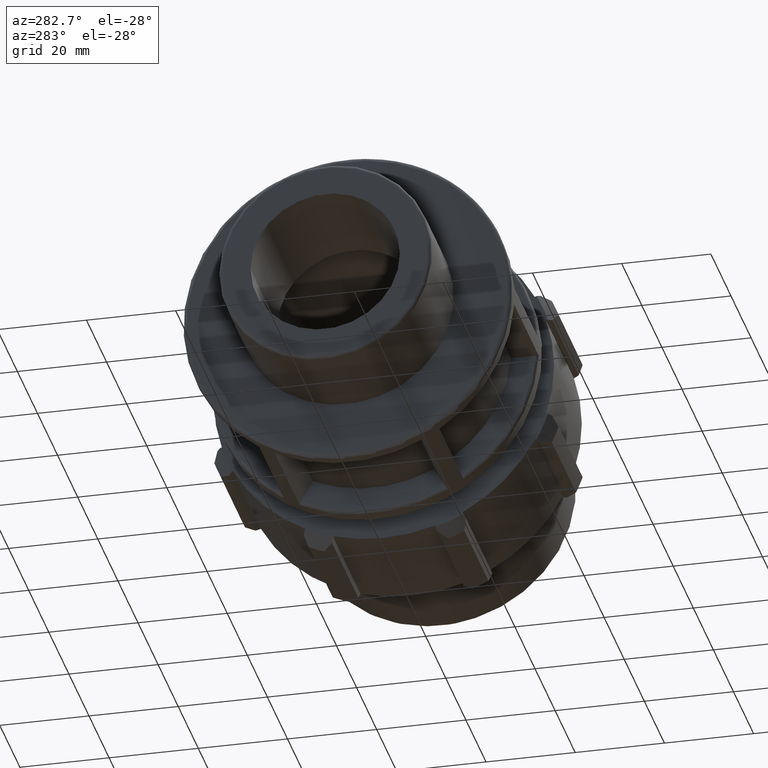
[diagram: clean part render]
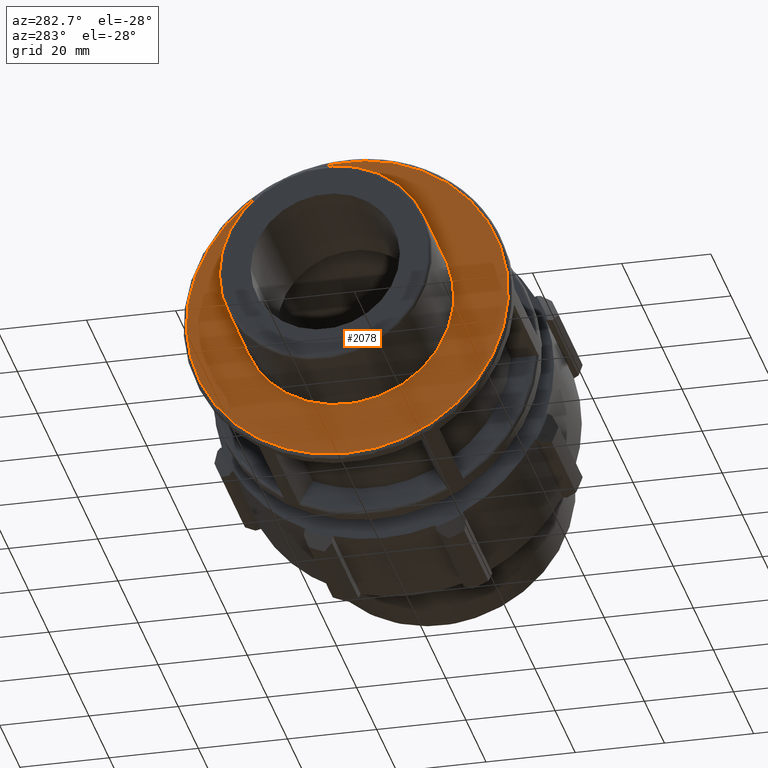
[diagram: same view with one face highlighted and labeled with its STEP entity id]
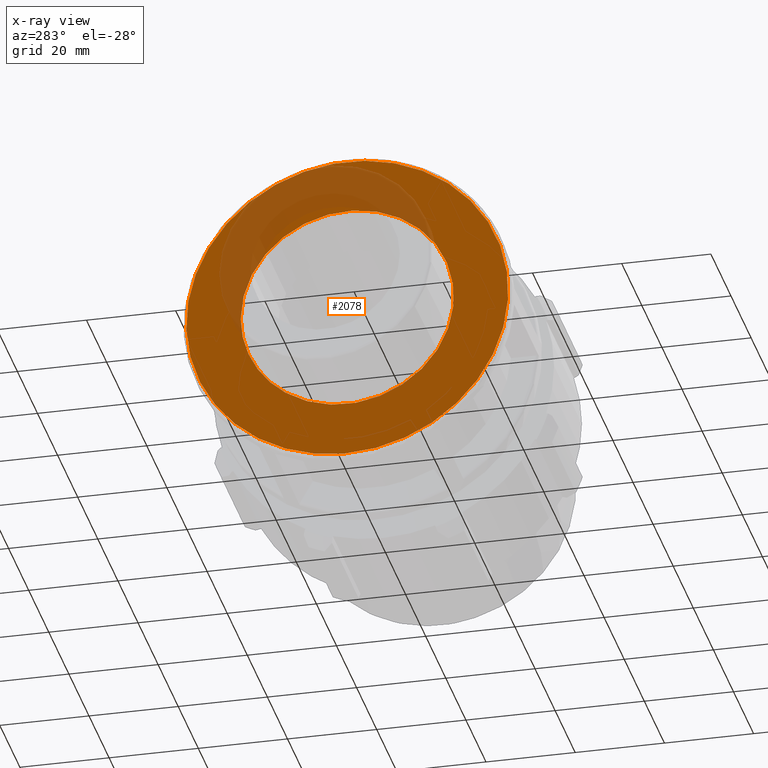
[diagram: x-ray of the same camera — body ghosted, the highlighted face saturated]
A machine part, auxiliary view. The second image highlights one B-rep face of the part: STEP entity #2078.
The next image is the same camera in x-ray: the body ghosted, the highlighted face saturated — about 24% of this face is hidden behind the body in this view.
In plain terms, the highlighted planar face has unit normal (-1, 0, 0).
Its self-contained STEP definition (entity closure, byte-faithful):
#404=PLANE('',#2234);
#471=FACE_BOUND('',#637,.T.);
#508=FACE_OUTER_BOUND('',#636,.T.);
#636=EDGE_LOOP('',(#1440));
#637=EDGE_LOOP('',(#1441));
#747=CIRCLE('',#2180,23.9015);
#780=CIRCLE('',#2233,36.1);
#841=VERTEX_POINT('',#2963);
#904=VERTEX_POINT('',#3343);
#1043=EDGE_CURVE('',#841,#841,#747,.T.);
#1124=EDGE_CURVE('',#904,#904,#780,.T.);
#1440=ORIENTED_EDGE('',*,*,#1124,.F.);
#1441=ORIENTED_EDGE('',*,*,#1043,.T.);
#2078=ADVANCED_FACE('',(#508,#471),#404,.T.);
#2180=AXIS2_PLACEMENT_3D('',#2964,#2399,#2400);
#2233=AXIS2_PLACEMENT_3D('',#3344,#2529,#2530);
#2234=AXIS2_PLACEMENT_3D('',#3345,#2531,#2532);
#2399=DIRECTION('center_axis',(1.,0.,0.));
#2400=DIRECTION('ref_axis',(0.,0.,-1.));
#2529=DIRECTION('center_axis',(1.,0.,0.));
#2530=DIRECTION('ref_axis',(0.,-0.551719337341258,0.834029839276583));
#2531=DIRECTION('center_axis',(-1.,0.,0.));
#2532=DIRECTION('ref_axis',(0.,0.,1.));
#2963=CARTESIAN_POINT('',(22.,13.84057037361,-19.4864135741585));
#2964=CARTESIAN_POINT('Origin',(22.,0.,0.));
#3343=CARTESIAN_POINT('',(22.,19.9170680780194,-30.1084771978846));
#3344=CARTESIAN_POINT('Origin',(22.,0.,0.));
#3345=CARTESIAN_POINT('Origin',(22.,36.9,0.));